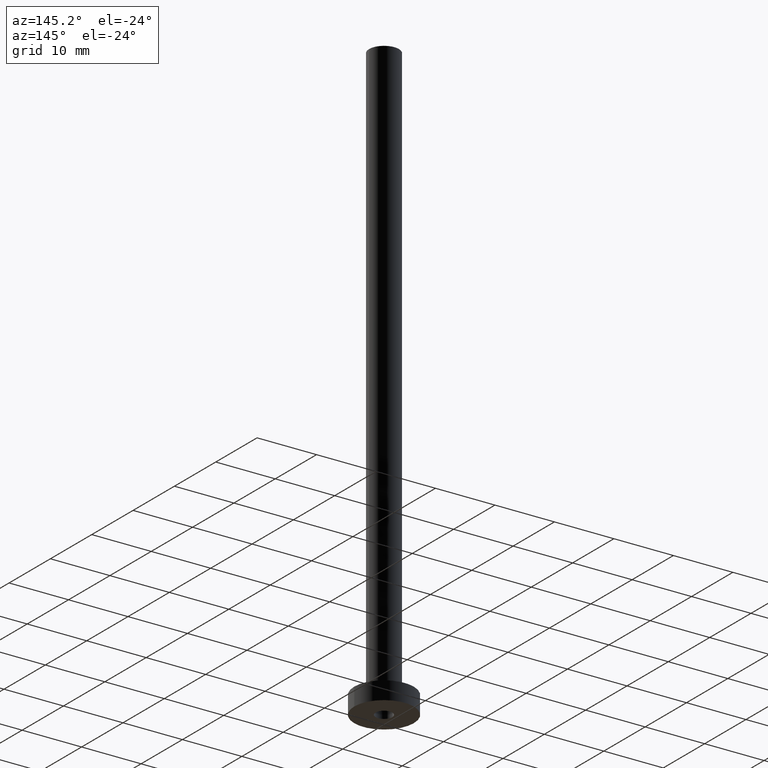
[diagram: clean part render]
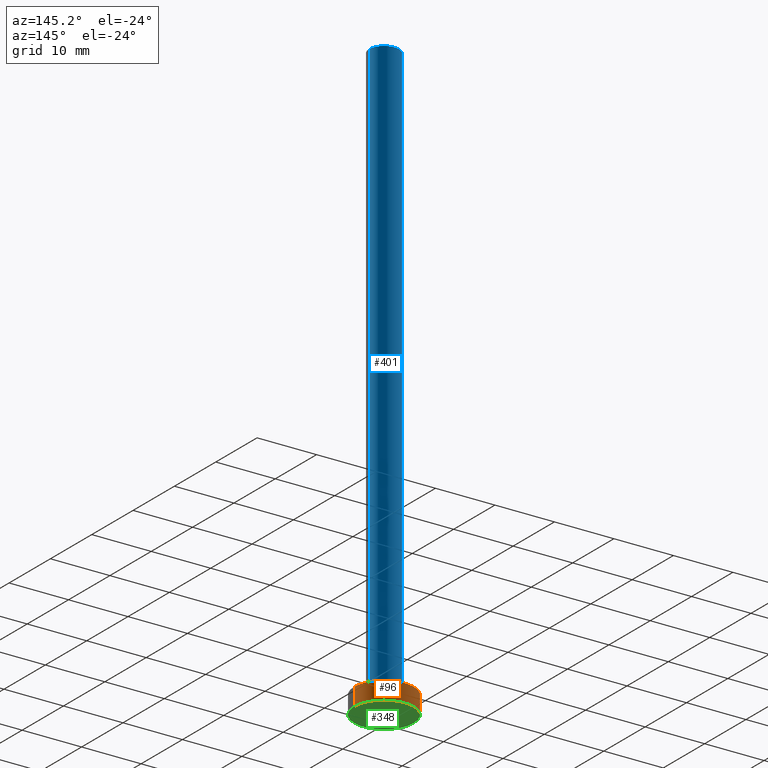
[diagram: same view with three faces highlighted in distinct colors, each labeled with its STEP entity id]
A machine part, auxiliary view with three faces highlighted in distinct colors.
Their STEP definitions:

[orange] entity #96 — the highlighted cylindrical surface (edge-blend (fillet) strip) has radius 5 mm, axis along (-0, -0, -1).
#6 = CARTESIAN_POINT ( 'NONE',  ( 5.000000000000000000, 6.123233995736766282E-16, 0.000000000000000000 ) ) ;
#9 = ORIENTED_EDGE ( 'NONE', *, *, #193, .F. ) ;
#21 = LINE ( 'NONE', #350, #221 ) ;
#24 = DIRECTION ( 'NONE',  ( -1.000000000000000000, 0.000000000000000000, 0.000000000000000000 ) ) ;
#26 = VERTEX_POINT ( 'NONE', #64 ) ;
#37 = EDGE_CURVE ( 'NONE', #26, #366, #21, .T. ) ;
#50 = AXIS2_PLACEMENT_3D ( 'NONE', #220, #359, #109 ) ;
#64 = CARTESIAN_POINT ( 'NONE',  ( 5.000000000000000000, 6.123233995736766282E-16, 3.000000000000000000 ) ) ;
#69 = DIRECTION ( 'NONE',  ( -0.000000000000000000, -0.000000000000000000, -1.000000000000000000 ) ) ;
#79 = EDGE_CURVE ( 'NONE', #440, #406, #105, .T. ) ;
#85 = ORIENTED_EDGE ( 'NONE', *, *, #37, .T. ) ;
#90 = DIRECTION ( 'NONE',  ( 0.000000000000000000, 0.000000000000000000, 1.000000000000000000 ) ) ;
#96 = ADVANCED_FACE ( 'NONE', ( #381 ), #379, .T. ) ;
#105 = LINE ( 'NONE', #308, #346 ) ;
#109 = DIRECTION ( 'NONE',  ( 1.000000000000000000, 0.000000000000000000, 0.000000000000000000 ) ) ;
#122 = AXIS2_PLACEMENT_3D ( 'NONE', #405, #90, #299 ) ;
#159 = ORIENTED_EDGE ( 'NONE', *, *, #410, .T. ) ;
#193 = EDGE_CURVE ( 'NONE', #26, #440, #272, .T. ) ;
#220 = CARTESIAN_POINT ( 'NONE',  ( 0.000000000000000000, 0.000000000000000000, 3.000000000000000000 ) ) ;
#221 = VECTOR ( 'NONE', #412, 1000.000000000000000 ) ;
#229 = EDGE_LOOP ( 'NONE', ( #9, #85, #159, #256 ) ) ;
#232 = CARTESIAN_POINT ( 'NONE',  ( -5.000000000000000000, 0.000000000000000000, 3.000000000000000000 ) ) ;
#243 = DIRECTION ( 'NONE',  ( -0.000000000000000000, -0.000000000000000000, -1.000000000000000000 ) ) ;
#256 = ORIENTED_EDGE ( 'NONE', *, *, #79, .F. ) ;
#272 = CIRCLE ( 'NONE', #50, 5.000000000000000000 ) ;
#293 = CARTESIAN_POINT ( 'NONE',  ( -5.000000000000000000, 0.000000000000000000, 0.000000000000000000 ) ) ;
#299 = DIRECTION ( 'NONE',  ( 1.000000000000000000, 0.000000000000000000, 0.000000000000000000 ) ) ;
#308 = CARTESIAN_POINT ( 'NONE',  ( -5.000000000000000000, 0.000000000000000000, 3.000000000000000000 ) ) ;
#345 = CARTESIAN_POINT ( 'NONE',  ( 0.000000000000000000, 0.000000000000000000, 3.000000000000000000 ) ) ;
#346 = VECTOR ( 'NONE', #243, 1000.000000000000000 ) ;
#350 = CARTESIAN_POINT ( 'NONE',  ( 5.000000000000000000, 6.123233995736766282E-16, 3.000000000000000000 ) ) ;
#359 = DIRECTION ( 'NONE',  ( 0.000000000000000000, 0.000000000000000000, 1.000000000000000000 ) ) ;
#366 = VERTEX_POINT ( 'NONE', #6 ) ;
#379 = CYLINDRICAL_SURFACE ( 'NONE', #407, 5.000000000000000000 ) ;
#381 = FACE_OUTER_BOUND ( 'NONE', #229, .T. ) ;
#405 = CARTESIAN_POINT ( 'NONE',  ( 0.000000000000000000, 0.000000000000000000, 0.000000000000000000 ) ) ;
#406 = VERTEX_POINT ( 'NONE', #293 ) ;
#407 = AXIS2_PLACEMENT_3D ( 'NONE', #345, #69, #24 ) ;
#410 = EDGE_CURVE ( 'NONE', #366, #406, #461, .T. ) ;
#412 = DIRECTION ( 'NONE',  ( -0.000000000000000000, -0.000000000000000000, -1.000000000000000000 ) ) ;
#440 = VERTEX_POINT ( 'NONE', #232 ) ;
#461 = CIRCLE ( 'NONE', #122, 5.000000000000000000 ) ;

[blue] entity #401 — the highlighted cylindrical surface (edge-blend (fillet) strip) has radius 2.5 mm, axis along (-0, -0, -1).
#12 = CARTESIAN_POINT ( 'NONE',  ( 0.000000000000000000, 0.000000000000000000, 100.0000000000000000 ) ) ;
#30 = DIRECTION ( 'NONE',  ( 1.000000000000000000, 0.000000000000000000, 0.000000000000000000 ) ) ;
#44 = DIRECTION ( 'NONE',  ( 0.000000000000000000, 0.000000000000000000, 1.000000000000000000 ) ) ;
#47 = VERTEX_POINT ( 'NONE', #108 ) ;
#48 = LINE ( 'NONE', #84, #279 ) ;
#51 = ORIENTED_EDGE ( 'NONE', *, *, #424, .T. ) ;
#84 = CARTESIAN_POINT ( 'NONE',  ( -2.500000000000000000, 0.000000000000000000, 100.0000000000000000 ) ) ;
#99 = AXIS2_PLACEMENT_3D ( 'NONE', #217, #251, #30 ) ;
#108 = CARTESIAN_POINT ( 'NONE',  ( 2.500000000000000000, 3.061616997868382648E-16, 3.299999999999997158 ) ) ;
#110 = VERTEX_POINT ( 'NONE', #213 ) ;
#120 = CARTESIAN_POINT ( 'NONE',  ( 2.500000000000000000, 3.061616997868382648E-16, 100.0000000000000000 ) ) ;
#121 = VERTEX_POINT ( 'NONE', #357 ) ;
#129 = DIRECTION ( 'NONE',  ( 1.000000000000000000, 0.000000000000000000, 0.000000000000000000 ) ) ;
#141 = ORIENTED_EDGE ( 'NONE', *, *, #358, .T. ) ;
#156 = LINE ( 'NONE', #120, #292 ) ;
#163 = DIRECTION ( 'NONE',  ( -1.000000000000000000, 0.000000000000000000, 0.000000000000000000 ) ) ;
#164 = EDGE_LOOP ( 'NONE', ( #231, #141, #51, #442 ) ) ;
#175 = CIRCLE ( 'NONE', #99, 2.500000000000000000 ) ;
#184 = AXIS2_PLACEMENT_3D ( 'NONE', #433, #44, #129 ) ;
#202 = VERTEX_POINT ( 'NONE', #283 ) ;
#213 = CARTESIAN_POINT ( 'NONE',  ( 2.500000000000000000, 3.061616997868382648E-16, 100.0000000000000000 ) ) ;
#217 = CARTESIAN_POINT ( 'NONE',  ( 0.000000000000000000, 0.000000000000000000, 100.0000000000000000 ) ) ;
#228 = DIRECTION ( 'NONE',  ( -0.000000000000000000, -0.000000000000000000, -1.000000000000000000 ) ) ;
#231 = ORIENTED_EDGE ( 'NONE', *, *, #244, .F. ) ;
#244 = EDGE_CURVE ( 'NONE', #110, #121, #175, .T. ) ;
#251 = DIRECTION ( 'NONE',  ( 0.000000000000000000, 0.000000000000000000, 1.000000000000000000 ) ) ;
#255 = DIRECTION ( 'NONE',  ( -0.000000000000000000, -0.000000000000000000, -1.000000000000000000 ) ) ;
#258 = CYLINDRICAL_SURFACE ( 'NONE', #318, 2.500000000000000000 ) ;
#279 = VECTOR ( 'NONE', #228, 1000.000000000000000 ) ;
#283 = CARTESIAN_POINT ( 'NONE',  ( -2.500000000000000000, 0.000000000000000000, 3.299999999999997158 ) ) ;
#292 = VECTOR ( 'NONE', #255, 1000.000000000000000 ) ;
#318 = AXIS2_PLACEMENT_3D ( 'NONE', #12, #363, #163 ) ;
#325 = EDGE_CURVE ( 'NONE', #121, #202, #48, .T. ) ;
#326 = CIRCLE ( 'NONE', #184, 2.500000000000000000 ) ;
#335 = FACE_OUTER_BOUND ( 'NONE', #164, .T. ) ;
#357 = CARTESIAN_POINT ( 'NONE',  ( -2.500000000000000000, 0.000000000000000000, 100.0000000000000000 ) ) ;
#358 = EDGE_CURVE ( 'NONE', #110, #47, #156, .T. ) ;
#363 = DIRECTION ( 'NONE',  ( -0.000000000000000000, -0.000000000000000000, -1.000000000000000000 ) ) ;
#401 = ADVANCED_FACE ( 'NONE', ( #335 ), #258, .T. ) ;
#424 = EDGE_CURVE ( 'NONE', #47, #202, #326, .T. ) ;
#433 = CARTESIAN_POINT ( 'NONE',  ( 0.000000000000000000, 0.000000000000000000, 3.299999999999997158 ) ) ;
#442 = ORIENTED_EDGE ( 'NONE', *, *, #325, .F. ) ;

[green] entity #348 — the highlighted planar face has unit normal (0, 0, 1).
#3 = AXIS2_PLACEMENT_3D ( 'NONE', #423, #246, #111 ) ;
#6 = CARTESIAN_POINT ( 'NONE',  ( 5.000000000000000000, 6.123233995736766282E-16, 0.000000000000000000 ) ) ;
#15 = VERTEX_POINT ( 'NONE', #344 ) ;
#46 = CARTESIAN_POINT ( 'NONE',  ( 0.000000000000000000, 0.000000000000000000, 0.000000000000000000 ) ) ;
#59 = AXIS2_PLACEMENT_3D ( 'NONE', #196, #332, #329 ) ;
#90 = DIRECTION ( 'NONE',  ( 0.000000000000000000, 0.000000000000000000, 1.000000000000000000 ) ) ;
#91 = ORIENTED_EDGE ( 'NONE', *, *, #287, .F. ) ;
#111 = DIRECTION ( 'NONE',  ( 1.000000000000000000, 0.000000000000000000, 0.000000000000000000 ) ) ;
#122 = AXIS2_PLACEMENT_3D ( 'NONE', #405, #90, #299 ) ;
#130 = AXIS2_PLACEMENT_3D ( 'NONE', #432, #248, #316 ) ;
#138 = ORIENTED_EDGE ( 'NONE', *, *, #410, .F. ) ;
#160 = EDGE_CURVE ( 'NONE', #406, #366, #183, .T. ) ;
#183 = CIRCLE ( 'NONE', #3, 5.000000000000000000 ) ;
#194 = DIRECTION ( 'NONE',  ( 0.000000000000000000, 0.000000000000000000, 1.000000000000000000 ) ) ;
#195 = VERTEX_POINT ( 'NONE', #322 ) ;
#196 = CARTESIAN_POINT ( 'NONE',  ( 0.000000000000000000, 0.000000000000000000, 0.000000000000000000 ) ) ;
#199 = PLANE ( 'NONE',  #436 ) ;
#246 = DIRECTION ( 'NONE',  ( 0.000000000000000000, 0.000000000000000000, 1.000000000000000000 ) ) ;
#248 = DIRECTION ( 'NONE',  ( -0.000000000000000000, -0.000000000000000000, -1.000000000000000000 ) ) ;
#287 = EDGE_CURVE ( 'NONE', #15, #195, #429, .T. ) ;
#289 = FACE_BOUND ( 'NONE', #364, .T. ) ;
#293 = CARTESIAN_POINT ( 'NONE',  ( -5.000000000000000000, 0.000000000000000000, 0.000000000000000000 ) ) ;
#294 = ORIENTED_EDGE ( 'NONE', *, *, #340, .F. ) ;
#299 = DIRECTION ( 'NONE',  ( 1.000000000000000000, 0.000000000000000000, 0.000000000000000000 ) ) ;
#316 = DIRECTION ( 'NONE',  ( 1.000000000000000000, 0.000000000000000000, 0.000000000000000000 ) ) ;
#322 = CARTESIAN_POINT ( 'NONE',  ( -1.399999999999999911, 0.000000000000000000, 0.000000000000000000 ) ) ;
#327 = FACE_OUTER_BOUND ( 'NONE', #421, .T. ) ;
#329 = DIRECTION ( 'NONE',  ( 1.000000000000000000, 0.000000000000000000, 0.000000000000000000 ) ) ;
#332 = DIRECTION ( 'NONE',  ( -0.000000000000000000, -0.000000000000000000, -1.000000000000000000 ) ) ;
#340 = EDGE_CURVE ( 'NONE', #195, #15, #377, .T. ) ;
#344 = CARTESIAN_POINT ( 'NONE',  ( 1.399999999999999911, 1.714505518806294391E-16, 0.000000000000000000 ) ) ;
#348 = ADVANCED_FACE ( 'NONE', ( #289, #327 ), #199, .F. ) ;
#364 = EDGE_LOOP ( 'NONE', ( #294, #91 ) ) ;
#366 = VERTEX_POINT ( 'NONE', #6 ) ;
#377 = CIRCLE ( 'NONE', #59, 1.399999999999999911 ) ;
#397 = DIRECTION ( 'NONE',  ( 1.000000000000000000, 0.000000000000000000, -0.000000000000000000 ) ) ;
#405 = CARTESIAN_POINT ( 'NONE',  ( 0.000000000000000000, 0.000000000000000000, 0.000000000000000000 ) ) ;
#406 = VERTEX_POINT ( 'NONE', #293 ) ;
#410 = EDGE_CURVE ( 'NONE', #366, #406, #461, .T. ) ;
#421 = EDGE_LOOP ( 'NONE', ( #453, #138 ) ) ;
#423 = CARTESIAN_POINT ( 'NONE',  ( 0.000000000000000000, 0.000000000000000000, 0.000000000000000000 ) ) ;
#429 = CIRCLE ( 'NONE', #130, 1.399999999999999911 ) ;
#432 = CARTESIAN_POINT ( 'NONE',  ( 0.000000000000000000, 0.000000000000000000, 0.000000000000000000 ) ) ;
#436 = AXIS2_PLACEMENT_3D ( 'NONE', #46, #194, #397 ) ;
#453 = ORIENTED_EDGE ( 'NONE', *, *, #160, .F. ) ;
#461 = CIRCLE ( 'NONE', #122, 5.000000000000000000 ) ;